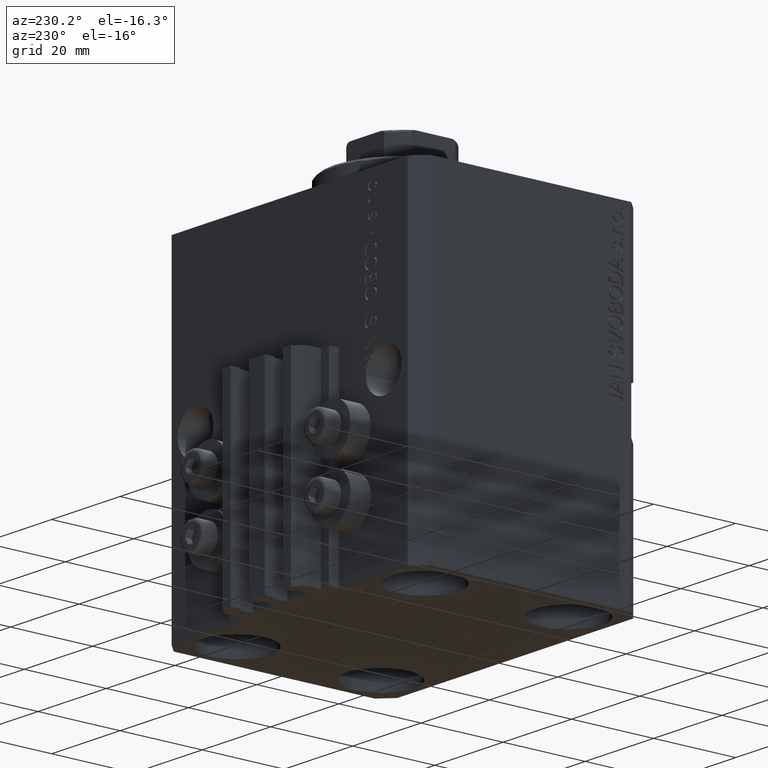
[diagram: clean part render]
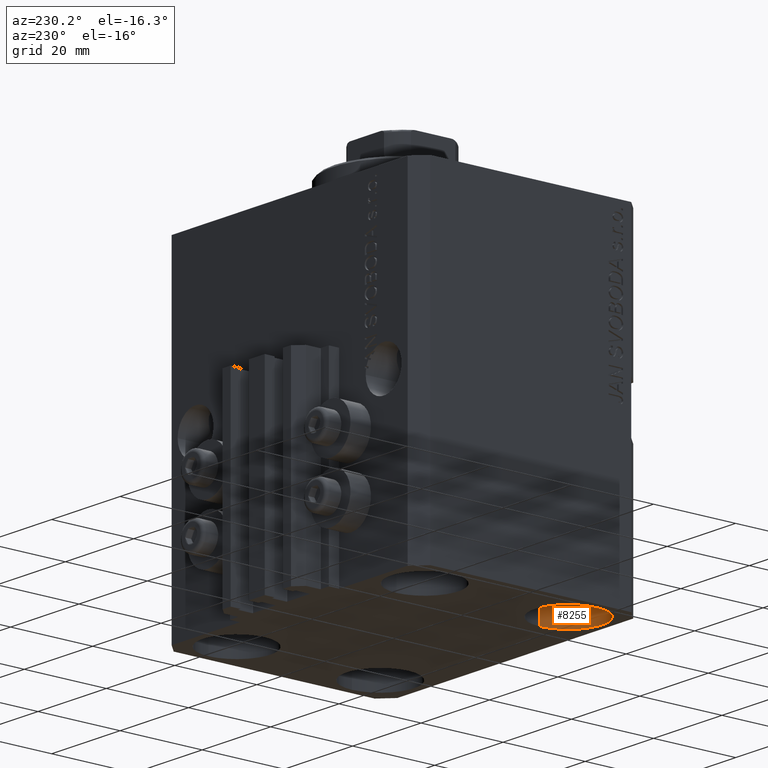
[diagram: same view with one face highlighted and labeled with its STEP entity id]
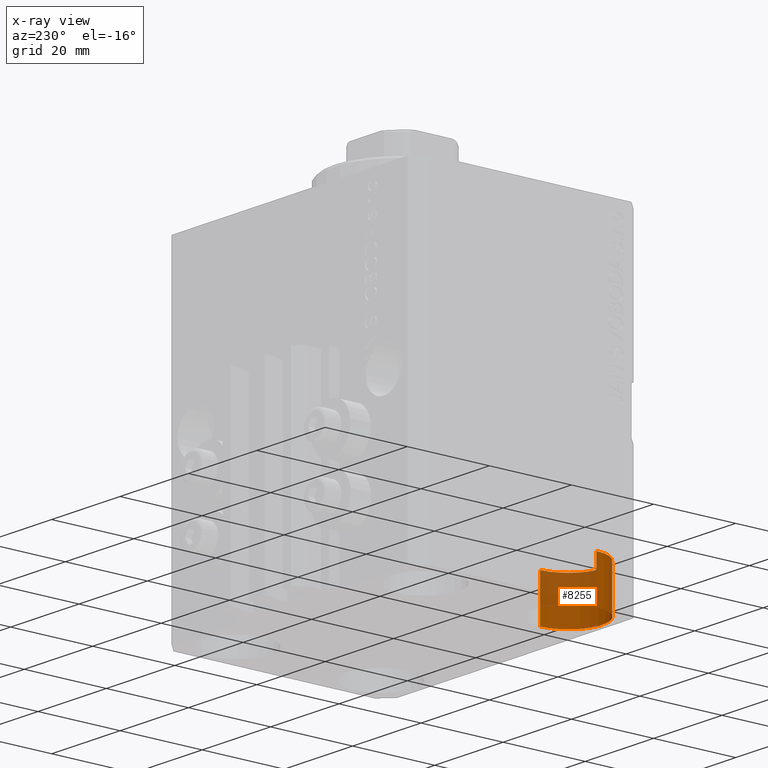
[diagram: x-ray of the same camera — body ghosted, the highlighted face saturated]
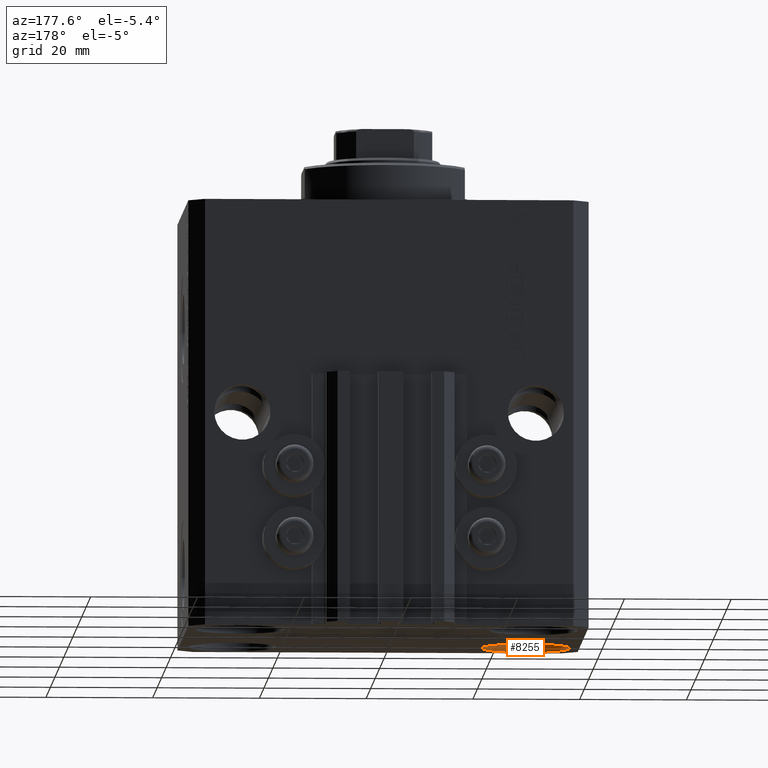
[diagram: same view with one face highlighted and labeled with its STEP entity id]
A machine part, auxiliary view. The second image highlights one B-rep face of the part: STEP entity #8255.
The next image is the same camera in x-ray: the body ghosted, the highlighted face saturated — about 44% of this face is hidden behind the body in this view.
A second angle (auxiliary view) of the same face is appended — the face is thin or edge-on in the first view.
In plain terms, the highlighted cylindrical surface (partial cylindrical patch) has radius 8.25 mm, axis along (-0, -0, -1).
Its self-contained STEP definition (entity closure, byte-faithful):
#412 = AXIS2_PLACEMENT_3D ( 'NONE', #9207, #38120, #31255 ) ;
#1064 = VECTOR ( 'NONE', #9256, 1000.000000000000000 ) ;
#1258 = EDGE_CURVE ( 'NONE', #34592, #41661, #39250, .T. ) ;
#1695 = FACE_OUTER_BOUND ( 'NONE', #29545, .T. ) ;
#2276 = ORIENTED_EDGE ( 'NONE', *, *, #21789, .T. ) ;
#7001 = CARTESIAN_POINT ( 'NONE',  ( -35.75000000000000711, -17.50000000000000000, -69.00000000000000000 ) ) ;
#7679 = CARTESIAN_POINT ( 'NONE',  ( -35.75000000000000711, -17.50000000000000000, -69.00000000000000000 ) ) ;
#8255 = ADVANCED_FACE ( 'NONE', ( #1695 ), #45027, .F. ) ;
#9207 = CARTESIAN_POINT ( 'NONE',  ( -27.50000000000000355, -17.50000000000000000, -69.00000000000000000 ) ) ;
#9256 = DIRECTION ( 'NONE',  ( -0.000000000000000000, -0.000000000000000000, -1.000000000000000000 ) ) ;
#12117 = LINE ( 'NONE', #33462, #1064 ) ;
#13634 = ORIENTED_EDGE ( 'NONE', *, *, #27953, .F. ) ;
#13640 = AXIS2_PLACEMENT_3D ( 'NONE', #30394, #45493, #41484 ) ;
#17834 = ORIENTED_EDGE ( 'NONE', *, *, #25292, .T. ) ;
#18839 = AXIS2_PLACEMENT_3D ( 'NONE', #32723, #46675, #36042 ) ;
#19404 = CARTESIAN_POINT ( 'NONE',  ( -19.25000000000000355, -17.50000000000000000, -69.00000000000000000 ) ) ;
#20001 = CARTESIAN_POINT ( 'NONE',  ( -35.75000000000000711, -17.50000000000000000, -80.00000000000000000 ) ) ;
#21789 = EDGE_CURVE ( 'NONE', #39603, #41661, #12117, .T. ) ;
#22150 = DIRECTION ( 'NONE',  ( -0.000000000000000000, -0.000000000000000000, -1.000000000000000000 ) ) ;
#23098 = VECTOR ( 'NONE', #22150, 1000.000000000000000 ) ;
#25292 = EDGE_CURVE ( 'NONE', #25797, #39603, #31456, .T. ) ;
#25797 = VERTEX_POINT ( 'NONE', #7001 ) ;
#26413 = LINE ( 'NONE', #7679, #23098 ) ;
#27953 = EDGE_CURVE ( 'NONE', #25797, #34592, #26413, .T. ) ;
#29545 = EDGE_LOOP ( 'NONE', ( #17834, #2276, #44254, #13634 ) ) ;
#30394 = CARTESIAN_POINT ( 'NONE',  ( -27.50000000000000355, -17.50000000000000000, -69.00000000000000000 ) ) ;
#31255 = DIRECTION ( 'NONE',  ( 1.000000000000000000, 0.000000000000000000, 0.000000000000000000 ) ) ;
#31456 = CIRCLE ( 'NONE', #412, 8.250000000000000000 ) ;
#32723 = CARTESIAN_POINT ( 'NONE',  ( -27.50000000000000355, -17.50000000000000000, -80.00000000000000000 ) ) ;
#33462 = CARTESIAN_POINT ( 'NONE',  ( -19.25000000000000355, -17.50000000000000000, -69.00000000000000000 ) ) ;
#34592 = VERTEX_POINT ( 'NONE', #20001 ) ;
#35752 = CARTESIAN_POINT ( 'NONE',  ( -19.25000000000000355, -17.50000000000000000, -80.00000000000000000 ) ) ;
#36042 = DIRECTION ( 'NONE',  ( 1.000000000000000000, 0.000000000000000000, 0.000000000000000000 ) ) ;
#38120 = DIRECTION ( 'NONE',  ( -0.000000000000000000, -0.000000000000000000, 1.000000000000000000 ) ) ;
#39250 = CIRCLE ( 'NONE', #18839, 8.250000000000000000 ) ;
#39603 = VERTEX_POINT ( 'NONE', #19404 ) ;
#41484 = DIRECTION ( 'NONE',  ( -1.000000000000000000, 0.000000000000000000, 0.000000000000000000 ) ) ;
#41661 = VERTEX_POINT ( 'NONE', #35752 ) ;
#44254 = ORIENTED_EDGE ( 'NONE', *, *, #1258, .F. ) ;
#45027 = CYLINDRICAL_SURFACE ( 'NONE', #13640, 8.250000000000000000 ) ;
#45493 = DIRECTION ( 'NONE',  ( -0.000000000000000000, -0.000000000000000000, -1.000000000000000000 ) ) ;
#46675 = DIRECTION ( 'NONE',  ( -0.000000000000000000, -0.000000000000000000, 1.000000000000000000 ) ) ;